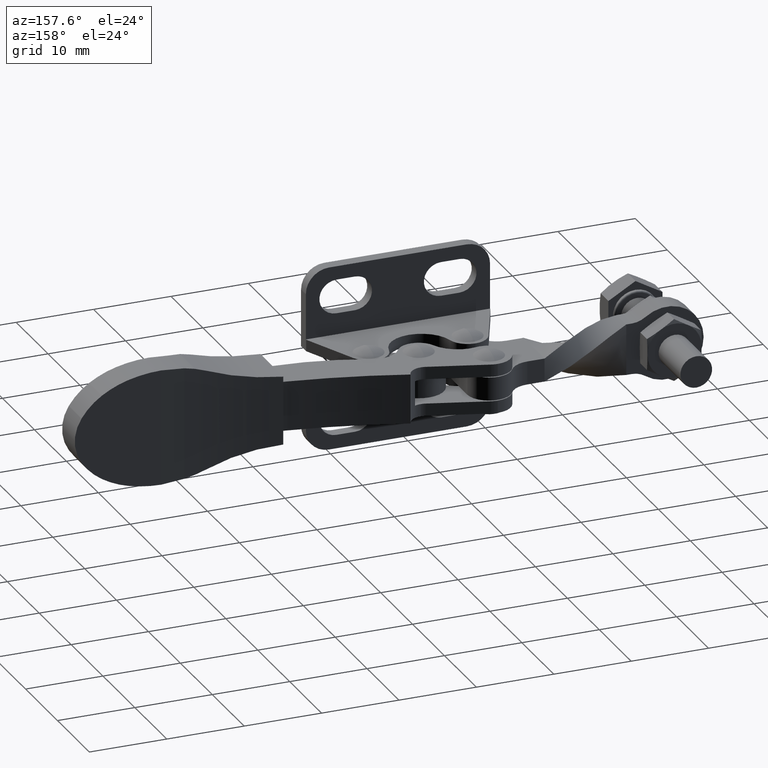
[diagram: clean part render]
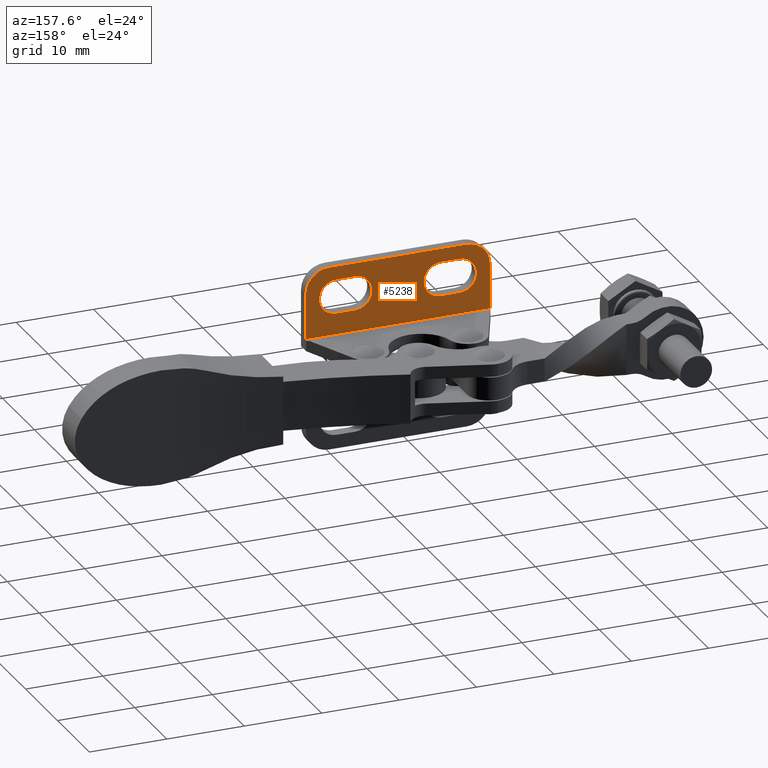
[diagram: same view with one face highlighted and labeled with its STEP entity id]
A machine part, auxiliary view. The second image highlights one B-rep face of the part: STEP entity #5238.
In plain terms, the highlighted planar face has unit normal (0, -1, 0).
Its self-contained STEP definition (entity closure, byte-faithful):
#6 = DIRECTION ( 'NONE',  ( 1.000000000000000000, -0.0000000000000000000, 3.614008011079118200E-016 ) ) ;
#32 = DIRECTION ( 'NONE',  ( 0.0000000000000000000, 0.0000000000000000000, -1.000000000000000000 ) ) ;
#33 = DIRECTION ( 'NONE',  ( 0.0000000000000000000, -1.000000000000000000, 0.0000000000000000000 ) ) ;
#44 = CARTESIAN_POINT ( 'NONE',  ( 6.349999489014481700, 1.500000000000000000, 6.449999999995851500 ) ) ;
#55 = CARTESIAN_POINT ( 'NONE',  ( 2.999999999999929800, 1.500000000000000000, 10.39999999999997900 ) ) ;
#82 = CARTESIAN_POINT ( 'NONE',  ( 6.349999489014481700, 1.500000000000000000, 4.250000000000291300 ) ) ;
#155 = ORIENTED_EDGE ( 'NONE', *, *, #5593, .F. ) ;
#169 = DIRECTION ( 'NONE',  ( 0.0000000000000000000, -0.0000000000000000000, -1.000000000000000000 ) ) ;
#228 = DIRECTION ( 'NONE',  ( 0.0000000000000000000, -1.000000000000000000, 0.0000000000000000000 ) ) ;
#270 = ORIENTED_EDGE ( 'NONE', *, *, #6422, .T. ) ;
#296 = AXIS2_PLACEMENT_3D ( 'NONE', #7585, #7575, #7574 ) ;
#410 = AXIS2_PLACEMENT_3D ( 'NONE', #8497, #8485, #8484 ) ;
#432 = AXIS2_PLACEMENT_3D ( 'NONE', #5166, #5146, #5111 ) ;
#507 = ORIENTED_EDGE ( 'NONE', *, *, #7633, .T. ) ;
#563 = DIRECTION ( 'NONE',  ( 0.0000000000000000000, 0.0000000000000000000, -1.000000000000000000 ) ) ;
#573 = DIRECTION ( 'NONE',  ( 0.0000000000000000000, -1.000000000000000000, 0.0000000000000000000 ) ) ;
#610 = AXIS2_PLACEMENT_3D ( 'NONE', #837, #228, #169 ) ;
#636 = PLANE ( 'NONE',  #610 ) ;
#638 = VECTOR ( 'NONE', #8741, 1000.000000000000000 ) ;
#674 = CARTESIAN_POINT ( 'NONE',  ( 19.85000000000002600, 1.500000000000000000, 6.450000000000846600 ) ) ;
#703 = CIRCLE ( 'NONE', #5290, 2.199999999995560600 ) ;
#722 = VERTEX_POINT ( 'NONE', #6347 ) ;
#778 = CARTESIAN_POINT ( 'NONE',  ( 3.949999999998357500, 1.500000000000000000, 8.649999999989594500 ) ) ;
#837 = CARTESIAN_POINT ( 'NONE',  ( 20.80000000000021700, 1.500000000000000000, 7.399999999999979000 ) ) ;
#930 = LINE ( 'NONE', #7336, #2969 ) ;
#959 = LINE ( 'NONE', #82, #967 ) ;
#967 = VECTOR ( 'NONE', #6, 1000.000000000000000 ) ;
#1029 = VECTOR ( 'NONE', #7170, 1000.000000000000000 ) ;
#1138 = CARTESIAN_POINT ( 'NONE',  ( 19.84999999999999800, 1.500000000000000000, 8.650000000001638200 ) ) ;
#1364 = ORIENTED_EDGE ( 'NONE', *, *, #6707, .F. ) ;
#1678 = DIRECTION ( 'NONE',  ( 0.0000000000000000000, 0.0000000000000000000, -1.000000000000000000 ) ) ;
#1950 = AXIS2_PLACEMENT_3D ( 'NONE', #674, #573, #563 ) ;
#1955 = LINE ( 'NONE', #8718, #638 ) ;
#1996 = LINE ( 'NONE', #7822, #6032 ) ;
#2002 = EDGE_CURVE ( 'NONE', #4829, #2920, #4921, .T. ) ;
#2113 = VECTOR ( 'NONE', #7605, 1000.000000000000000 ) ;
#2143 = CIRCLE ( 'NONE', #410, 3.000000000000001800 ) ;
#2153 = ORIENTED_EDGE ( 'NONE', *, *, #7007, .T. ) ;
#2581 = VECTOR ( 'NONE', #3243, 1000.000000000000000 ) ;
#2654 = CARTESIAN_POINT ( 'NONE',  ( 3.950000000000026400, 1.500000000000000000, 4.249999999999380900 ) ) ;
#2677 = ORIENTED_EDGE ( 'NONE', *, *, #8063, .T. ) ;
#2920 = VERTEX_POINT ( 'NONE', #5129 ) ;
#2926 = VERTEX_POINT ( 'NONE', #4743 ) ;
#2969 = VECTOR ( 'NONE', #7971, 1000.000000000000000 ) ;
#3037 = CARTESIAN_POINT ( 'NONE',  ( 17.45000000000001400, 1.500000000000000000, 8.649999999999806700 ) ) ;
#3089 = AXIS2_PLACEMENT_3D ( 'NONE', #4052, #6283, #1678 ) ;
#3204 = LINE ( 'NONE', #8922, #1029 ) ;
#3243 = DIRECTION ( 'NONE',  ( -1.000000000000000000, 0.0000000000000000000, -7.574960791221820900E-013 ) ) ;
#3245 = ORIENTED_EDGE ( 'NONE', *, *, #6653, .F. ) ;
#3535 = CARTESIAN_POINT ( 'NONE',  ( 23.80000000000105200, 1.500000000000000000, 1.500000000000000000 ) ) ;
#3662 = LINE ( 'NONE', #3834, #2581 ) ;
#3834 = CARTESIAN_POINT ( 'NONE',  ( 6.349999489012815500, 1.500000000000000000, 8.649999999991413400 ) ) ;
#3921 = VECTOR ( 'NONE', #9180, 1000.000000000000000 ) ;
#3964 = CARTESIAN_POINT ( 'NONE',  ( 19.84999999999999800, 1.500000000000000000, 8.650000000001638200 ) ) ;
#4052 = CARTESIAN_POINT ( 'NONE',  ( 17.45000000000002800, 1.500000000000000000, 6.450000000000034800 ) ) ;
#4281 = LINE ( 'NONE', #1138, #3921 ) ;
#4287 = EDGE_LOOP ( 'NONE', ( #1364, #3245, #9177, #7580, #155, #7799 ) ) ;
#4743 = CARTESIAN_POINT ( 'NONE',  ( 20.80000000000021700, 1.500000000000000000, 10.39999999999998100 ) ) ;
#4829 = VERTEX_POINT ( 'NONE', #3037 ) ;
#4921 = CIRCLE ( 'NONE', #3089, 2.199999999999765700 ) ;
#5105 = CIRCLE ( 'NONE', #432, 2.199999999994652500 ) ;
#5111 = DIRECTION ( 'NONE',  ( 0.0000000000000000000, 0.0000000000000000000, -1.000000000000000000 ) ) ;
#5129 = CARTESIAN_POINT ( 'NONE',  ( 17.45000000000005600, 1.500000000000000000, 4.250000000000277100 ) ) ;
#5146 = DIRECTION ( 'NONE',  ( 0.0000000000000000000, -1.000000000000000000, 0.0000000000000000000 ) ) ;
#5166 = CARTESIAN_POINT ( 'NONE',  ( 3.950000000000021900, 1.500000000000000000, 6.449999999994033400 ) ) ;
#5238 = ADVANCED_FACE ( 'NONE', ( #8246, #8476, #9097 ), #636, .F. ) ;
#5290 = AXIS2_PLACEMENT_3D ( 'NONE', #44, #33, #32 ) ;
#5296 = CARTESIAN_POINT ( 'NONE',  ( 0.0000000000000000000, 1.500000000000000000, 1.500000000000000000 ) ) ;
#5403 = VERTEX_POINT ( 'NONE', #9006 ) ;
#5449 = EDGE_CURVE ( 'NONE', #2920, #5705, #1955, .T. ) ;
#5478 = EDGE_CURVE ( 'NONE', #8431, #722, #2143, .T. ) ;
#5560 = EDGE_CURVE ( 'NONE', #2926, #8431, #1996, .T. ) ;
#5593 = EDGE_CURVE ( 'NONE', #5403, #2926, #6692, .T. ) ;
#5596 = EDGE_CURVE ( 'NONE', #6192, #5403, #6346, .T. ) ;
#5631 = VERTEX_POINT ( 'NONE', #7328 ) ;
#5705 = VERTEX_POINT ( 'NONE', #6532 ) ;
#5799 = VERTEX_POINT ( 'NONE', #6287 ) ;
#6016 = VERTEX_POINT ( 'NONE', #5296 ) ;
#6032 = VECTOR ( 'NONE', #7830, 1000.000000000000000 ) ;
#6091 = VERTEX_POINT ( 'NONE', #3964 ) ;
#6159 = EDGE_LOOP ( 'NONE', ( #8662, #270, #2153, #507 ) ) ;
#6192 = VERTEX_POINT ( 'NONE', #3535 ) ;
#6277 = VERTEX_POINT ( 'NONE', #2654 ) ;
#6283 = DIRECTION ( 'NONE',  ( 0.0000000000000000000, -1.000000000000000000, 0.0000000000000000000 ) ) ;
#6287 = CARTESIAN_POINT ( 'NONE',  ( 6.349999489012815500, 1.500000000000000000, 8.649999999991413400 ) ) ;
#6346 = LINE ( 'NONE', #7592, #2113 ) ;
#6347 = CARTESIAN_POINT ( 'NONE',  ( -4.727121472036799300E-014, 1.500000000000000000, 7.399999999999957700 ) ) ;
#6402 = ORIENTED_EDGE ( 'NONE', *, *, #2002, .T. ) ;
#6422 = EDGE_CURVE ( 'NONE', #5631, #5799, #703, .T. ) ;
#6433 = EDGE_CURVE ( 'NONE', #6277, #5631, #959, .T. ) ;
#6532 = CARTESIAN_POINT ( 'NONE',  ( 19.84999897799325600, 1.500000000000000000, 4.250000000000291300 ) ) ;
#6653 = EDGE_CURVE ( 'NONE', #722, #6016, #3204, .T. ) ;
#6692 = CIRCLE ( 'NONE', #296, 3.000000000000001800 ) ;
#6707 = EDGE_CURVE ( 'NONE', #6016, #6192, #930, .T. ) ;
#7007 = EDGE_CURVE ( 'NONE', #5799, #8075, #3662, .T. ) ;
#7087 = EDGE_CURVE ( 'NONE', #6091, #4829, #4281, .T. ) ;
#7170 = DIRECTION ( 'NONE',  ( 6.563818557750119500E-015, 0.0000000000000000000, -1.000000000000000000 ) ) ;
#7328 = CARTESIAN_POINT ( 'NONE',  ( 6.349999489014481700, 1.500000000000000000, 4.250000000000291300 ) ) ;
#7336 = CARTESIAN_POINT ( 'NONE',  ( 18.30000000000060800, 1.499999999999999600, 1.500000000000000000 ) ) ;
#7574 = DIRECTION ( 'NONE',  ( 0.0000000000000000000, 0.0000000000000000000, -1.000000000000000000 ) ) ;
#7575 = DIRECTION ( 'NONE',  ( 0.0000000000000000000, -1.000000000000000000, 0.0000000000000000000 ) ) ;
#7580 = ORIENTED_EDGE ( 'NONE', *, *, #5560, .F. ) ;
#7585 = CARTESIAN_POINT ( 'NONE',  ( 20.80000000000021700, 1.500000000000000000, 7.399999999999979000 ) ) ;
#7592 = CARTESIAN_POINT ( 'NONE',  ( 23.80000000000021700, 1.500000000000000000, 7.399999999999979000 ) ) ;
#7605 = DIRECTION ( 'NONE',  ( -4.688441826964357100E-016, -0.0000000000000000000, 1.000000000000000000 ) ) ;
#7633 = EDGE_CURVE ( 'NONE', #8075, #6277, #5105, .T. ) ;
#7799 = ORIENTED_EDGE ( 'NONE', *, *, #5596, .F. ) ;
#7822 = CARTESIAN_POINT ( 'NONE',  ( 20.80000000000021700, 1.500000000000000000, 10.39999999999998300 ) ) ;
#7830 = DIRECTION ( 'NONE',  ( -1.000000000000000000, 0.0000000000000000000, -1.949127501097504600E-016 ) ) ;
#7971 = DIRECTION ( 'NONE',  ( 1.000000000000000000, 0.0000000000000000000, -0.0000000000000000000 ) ) ;
#8002 = ORIENTED_EDGE ( 'NONE', *, *, #7087, .T. ) ;
#8063 = EDGE_CURVE ( 'NONE', #5705, #6091, #8901, .T. ) ;
#8075 = VERTEX_POINT ( 'NONE', #778 ) ;
#8234 = ORIENTED_EDGE ( 'NONE', *, *, #5449, .T. ) ;
#8246 = FACE_OUTER_BOUND ( 'NONE', #4287, .T. ) ;
#8431 = VERTEX_POINT ( 'NONE', #55 ) ;
#8476 = FACE_BOUND ( 'NONE', #9165, .T. ) ;
#8484 = DIRECTION ( 'NONE',  ( 0.0000000000000000000, 0.0000000000000000000, -1.000000000000000000 ) ) ;
#8485 = DIRECTION ( 'NONE',  ( 0.0000000000000000000, -1.000000000000000000, 0.0000000000000000000 ) ) ;
#8497 = CARTESIAN_POINT ( 'NONE',  ( 2.999999999999954300, 1.500000000000000000, 7.399999999999979000 ) ) ;
#8662 = ORIENTED_EDGE ( 'NONE', *, *, #6433, .T. ) ;
#8718 = CARTESIAN_POINT ( 'NONE',  ( 19.84999897799325600, 1.500000000000000000, 4.250000000000290400 ) ) ;
#8741 = DIRECTION ( 'NONE',  ( 1.000000000000000000, -0.0000000000000000000, 5.782414048950388300E-015 ) ) ;
#8901 = CIRCLE ( 'NONE', #1950, 2.200000000000792400 ) ;
#8922 = CARTESIAN_POINT ( 'NONE',  ( -4.857225732735059900E-014, 1.500000000000000000, 7.399999999999957700 ) ) ;
#9006 = CARTESIAN_POINT ( 'NONE',  ( 23.80000000000021700, 1.500000000000000000, 7.399999999999979000 ) ) ;
#9097 = FACE_BOUND ( 'NONE', #6159, .T. ) ;
#9165 = EDGE_LOOP ( 'NONE', ( #8002, #6402, #8234, #2677 ) ) ;
#9177 = ORIENTED_EDGE ( 'NONE', *, *, #5478, .F. ) ;
#9180 = DIRECTION ( 'NONE',  ( -1.000000000000000000, 0.0000000000000000000, -7.632783294297997700E-013 ) ) ;